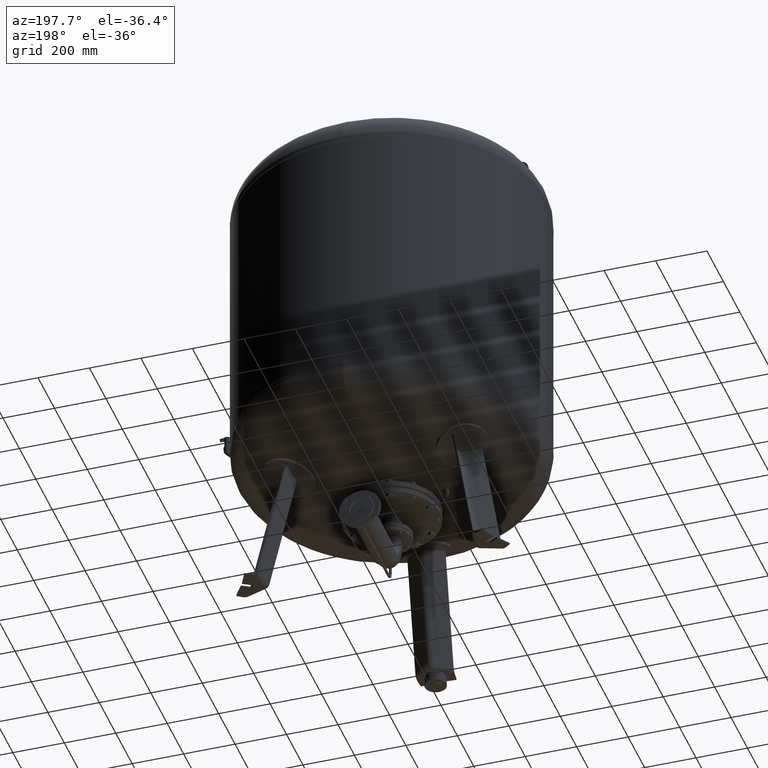
[diagram: clean part render]
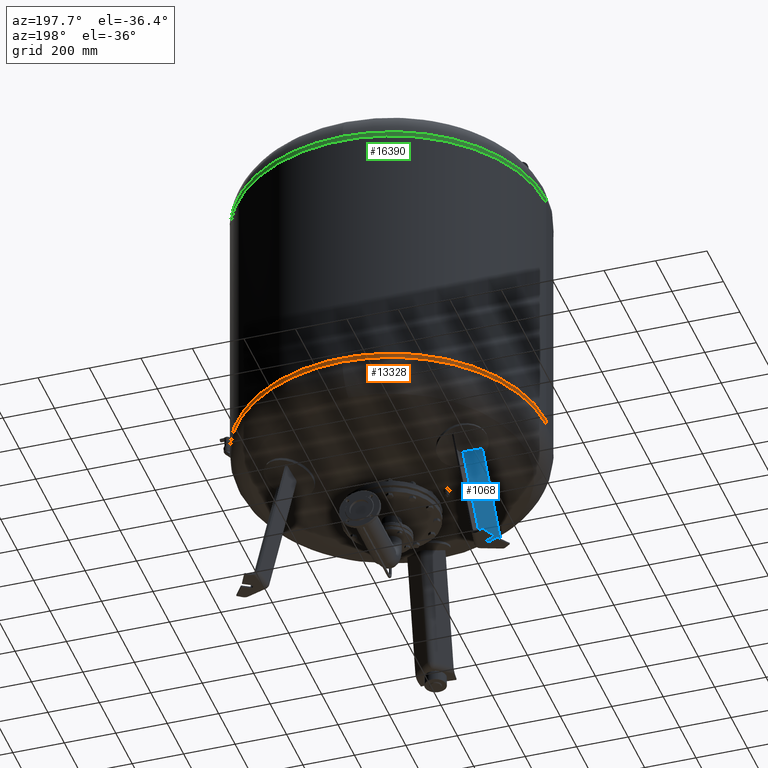
[diagram: same view with three faces highlighted in distinct colors, each labeled with its STEP entity id]
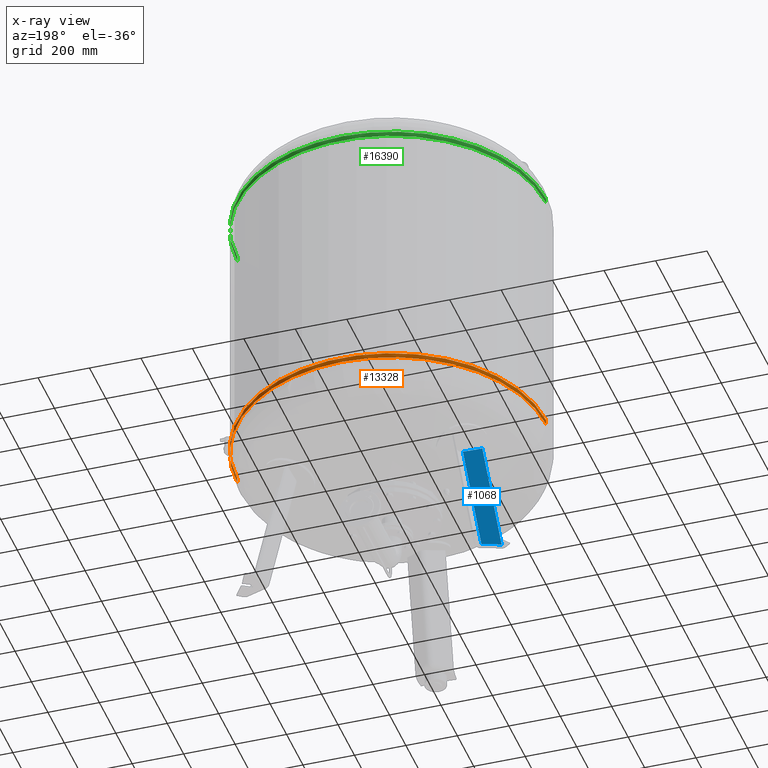
[diagram: x-ray of the same camera — body ghosted, the three highlighted faces saturated]
A machine part, auxiliary view with three faces highlighted in distinct colors.
The next image is the same camera in x-ray (body ghosted, the three faces saturated) — at least one of them is partly hidden behind the body in this view.
Their STEP definitions:

[orange] entity #13328 — the highlighted cylindrical surface (partial cylindrical patch) has radius 600 mm, axis along (-0, -0, 1).
#13278=CARTESIAN_POINT('',(-3.693994E-014,-4.510566E-014,705.543771283136150));
#13279=DIRECTION('',(-1.504413E-016,-1.836970E-016,1.0));
#13280=DIRECTION('',(-1.0,0.0,0.0));
#13281=AXIS2_PLACEMENT_3D('',#13278,#13279,#13280);
#13282=CYLINDRICAL_SURFACE('',#13281,599.999999999999890);
#13283=CARTESIAN_POINT('',(-600.000000000000110,-4.684274E-014,715.0));
#13284=VERTEX_POINT('',#13283);
#13285=CARTESIAN_POINT('',(-600.0,-4.336858E-014,696.087542566272190));
#13286=VERTEX_POINT('',#13285);
#13287=CARTESIAN_POINT('',(-600.000000000000110,-4.684274E-014,715.0));
#13288=DIRECTION('',(0.0,0.0,-1.0));
#13289=VECTOR('',#13288,18.912457433727809);
#13290=LINE('',#13287,#13289);
#13291=EDGE_CURVE('',#13284,#13286,#13290,.T.);
#13292=ORIENTED_EDGE('',*,*,#13291,.F.);
#13293=CARTESIAN_POINT('',(599.999999999999890,2.663364E-014,715.000000000000110));
#13294=VERTEX_POINT('',#13293);
#13295=CARTESIAN_POINT('',(-3.836254E-014,-4.684274E-014,715.0));
#13296=DIRECTION('',(0.0,0.0,1.0));
#13297=DIRECTION('',(-1.0,0.0,0.0));
#13298=AXIS2_PLACEMENT_3D('',#13295,#13296,#13297);
#13299=CIRCLE('',#13298,600.0);
#13300=EDGE_CURVE('',#13294,#13284,#13299,.T.);
#13301=ORIENTED_EDGE('',*,*,#13300,.F.);
#13302=CARTESIAN_POINT('',(599.999999999999890,3.010780E-014,696.087542566272300));
#13303=VERTEX_POINT('',#13302);
#13304=CARTESIAN_POINT('',(599.999999999999890,2.663364E-014,715.000000000000110));
#13305=DIRECTION('',(0.0,0.0,-1.0));
#13306=VECTOR('',#13305,18.912457433727809);
#13307=LINE('',#13304,#13306);
#13308=EDGE_CURVE('',#13294,#13303,#13307,.T.);
#13309=ORIENTED_EDGE('',*,*,#13308,.T.);
#13310=CARTESIAN_POINT('',(-1.445307E-013,600.0,696.087542566272420));
#13311=VERTEX_POINT('',#13310);
#13312=CARTESIAN_POINT('',(-3.551733E-014,-4.336858E-014,696.087542566272300));
#13313=DIRECTION('',(0.0,0.0,1.0));
#13314=DIRECTION('',(-1.0,0.0,0.0));
#13315=AXIS2_PLACEMENT_3D('',#13312,#13313,#13314);
#13316=CIRCLE('',#13315,600.0);
#13317=EDGE_CURVE('',#13303,#13311,#13316,.T.);
#13318=ORIENTED_EDGE('',*,*,#13317,.T.);
#13319=CARTESIAN_POINT('',(-3.551733E-014,-4.336858E-014,696.087542566272300));
#13320=DIRECTION('',(0.0,0.0,1.0));
#13321=DIRECTION('',(-1.0,0.0,0.0));
#13322=AXIS2_PLACEMENT_3D('',#13319,#13320,#13321);
#13323=CIRCLE('',#13322,600.0);
#13324=EDGE_CURVE('',#13311,#13286,#13323,.T.);
#13325=ORIENTED_EDGE('',*,*,#13324,.T.);
#13326=EDGE_LOOP('',(#13292,#13301,#13309,#13318,#13325));
#13327=FACE_OUTER_BOUND('',#13326,.T.);
#13328=ADVANCED_FACE('',(#13327),#13282,.T.);

[blue] entity #1068 — the highlighted planar face has unit normal (-0.3243, 0.9325, 0.1588).
#512=CARTESIAN_POINT('',(-420.404321888330290,224.087779953756810,27.029948423057284));
#513=VERTEX_POINT('',#512);
#522=CARTESIAN_POINT('',(-491.178961512120280,199.476382368576110,27.029948423057281));
#523=VERTEX_POINT('',#522);
#531=CARTESIAN_POINT('',(-491.178961512120280,199.476382368576110,27.029948423057281));
#532=DIRECTION('',(0.944521094592692,0.328450760190052,4.741265E-017));
#533=VECTOR('',#532,74.931772333057651);
#534=LINE('',#531,#533);
#535=EDGE_CURVE('',#523,#513,#534,.T.);
#851=CARTESIAN_POINT('',(-331.808702377670270,172.937075180255530,508.320240019970470));
#852=VERTEX_POINT('',#851);
#882=CARTESIAN_POINT('',(-399.179928245355650,146.360715746824160,526.809077370483350));
#883=VERTEX_POINT('',#882);
#884=CARTESIAN_POINT('',(-77.536866522000253,96.546967477290849,1476.144501634031000));
#885=DIRECTION('',(0.324282864533177,-0.932535537409927,-0.158802063077709));
#886=DIRECTION('',(0.180056805991956,-0.103955845408880,0.978147600733805));
#887=AXIS2_PLACEMENT_3D('',#884,#885,#886);
#888=CIRCLE('',#887,1003.580298946269700);
#889=EDGE_CURVE('',#883,#852,#888,.T.);
#1043=CARTESIAN_POINT('',(-420.404321888330290,224.087779953756810,27.029948423057284));
#1044=DIRECTION('',(0.180056805991956,-0.103955845408880,0.978147600733806));
#1045=VECTOR('',#1044,492.042603013951630);
#1046=LINE('',#1043,#1045);
#1047=EDGE_CURVE('',#513,#852,#1046,.T.);
#1052=CARTESIAN_POINT('',(-500.117346623909440,204.636961418988140,-21.527282742766886));
#1053=DIRECTION('',(-0.324282864533177,0.932535537409927,0.158802063077709));
#1054=DIRECTION('',(0.180056805991956,-0.103955845408880,0.978147600733806));
#1055=AXIS2_PLACEMENT_3D('',#1052,#1053,#1054);
#1056=PLANE('',#1055);
#1057=ORIENTED_EDGE('',*,*,#889,.T.);
#1058=ORIENTED_EDGE('',*,*,#1047,.F.);
#1059=ORIENTED_EDGE('',*,*,#535,.F.);
#1060=CARTESIAN_POINT('',(-491.178961512120280,199.476382368576110,27.029948423057281));
#1061=DIRECTION('',(0.180056805991956,-0.103955845408880,0.978147600733806));
#1062=VECTOR('',#1061,510.944491989237750);
#1063=LINE('',#1060,#1062);
#1064=EDGE_CURVE('',#523,#883,#1063,.T.);
#1065=ORIENTED_EDGE('',*,*,#1064,.T.);
#1066=EDGE_LOOP('',(#1057,#1058,#1059,#1065));
#1067=FACE_OUTER_BOUND('',#1066,.T.);
#1068=ADVANCED_FACE('',(#1067),#1056,.T.);

[green] entity #16390 — the highlighted cylindrical surface (partial cylindrical patch) has radius 600 mm, axis along (0, -0, -1).
#16340=CARTESIAN_POINT('',(6.869496E-015,-4.510566E-014,1724.456228716863700));
#16341=DIRECTION('',(2.797667E-017,-1.836970E-016,-1.0));
#16342=DIRECTION('',(1.0,0.0,0.0));
#16343=AXIS2_PLACEMENT_3D('',#16340,#16341,#16342);
#16344=CYLINDRICAL_SURFACE('',#16343,599.999999999999890);
#16345=CARTESIAN_POINT('',(600.000000000000110,-4.684274E-014,1715.0));
#16346=VERTEX_POINT('',#16345);
#16347=CARTESIAN_POINT('',(600.0,-4.336858E-014,1733.912457433727700));
#16348=VERTEX_POINT('',#16347);
#16349=CARTESIAN_POINT('',(600.000000000000110,-4.684274E-014,1715.0));
#16350=DIRECTION('',(0.0,0.0,1.0));
#16351=VECTOR('',#16350,18.912457433727695);
#16352=LINE('',#16349,#16351);
#16353=EDGE_CURVE('',#16346,#16348,#16352,.T.);
#16354=ORIENTED_EDGE('',*,*,#16353,.F.);
#16355=CARTESIAN_POINT('',(-599.999999999999890,2.663364E-014,1715.0));
#16356=VERTEX_POINT('',#16355);
#16357=CARTESIAN_POINT('',(7.134050E-015,-4.684274E-014,1715.0));
#16358=DIRECTION('',(0.0,0.0,-1.0));
#16359=DIRECTION('',(1.0,0.0,0.0));
#16360=AXIS2_PLACEMENT_3D('',#16357,#16358,#16359);
#16361=CIRCLE('',#16360,600.0);
#16362=EDGE_CURVE('',#16356,#16346,#16361,.T.);
#16363=ORIENTED_EDGE('',*,*,#16362,.F.);
#16364=CARTESIAN_POINT('',(-599.999999999999890,3.010780E-014,1733.912457433727700));
#16365=VERTEX_POINT('',#16364);
#16366=CARTESIAN_POINT('',(-599.999999999999890,2.663364E-014,1715.0));
#16367=DIRECTION('',(0.0,0.0,1.0));
#16368=VECTOR('',#16367,18.912457433727695);
#16369=LINE('',#16366,#16368);
#16370=EDGE_CURVE('',#16356,#16365,#16369,.T.);
#16371=ORIENTED_EDGE('',*,*,#16370,.T.);
#16372=CARTESIAN_POINT('',(1.156183E-013,600.0,1733.912457433727700));
#16373=VERTEX_POINT('',#16372);
#16374=CARTESIAN_POINT('',(6.604942E-015,-4.336858E-014,1733.912457433727700));
#16375=DIRECTION('',(0.0,0.0,-1.0));
#16376=DIRECTION('',(1.0,0.0,0.0));
#16377=AXIS2_PLACEMENT_3D('',#16374,#16375,#16376);
#16378=CIRCLE('',#16377,600.0);
#16379=EDGE_CURVE('',#16365,#16373,#16378,.T.);
#16380=ORIENTED_EDGE('',*,*,#16379,.T.);
#16381=CARTESIAN_POINT('',(6.604942E-015,-4.336858E-014,1733.912457433727700));
#16382=DIRECTION('',(0.0,0.0,-1.0));
#16383=DIRECTION('',(1.0,0.0,0.0));
#16384=AXIS2_PLACEMENT_3D('',#16381,#16382,#16383);
#16385=CIRCLE('',#16384,600.0);
#16386=EDGE_CURVE('',#16373,#16348,#16385,.T.);
#16387=ORIENTED_EDGE('',*,*,#16386,.T.);
#16388=EDGE_LOOP('',(#16354,#16363,#16371,#16380,#16387));
#16389=FACE_OUTER_BOUND('',#16388,.T.);
#16390=ADVANCED_FACE('',(#16389),#16344,.T.);